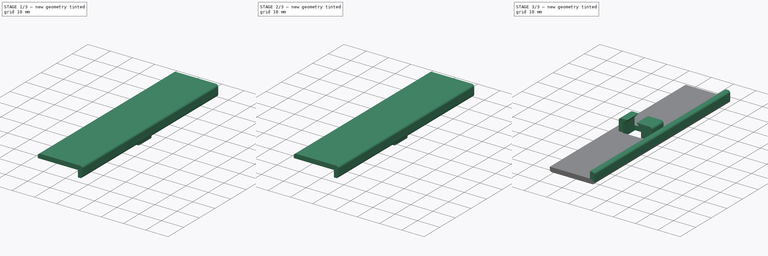
[diagram: build sequence overview — one tinted view per stage of 3, left to right]
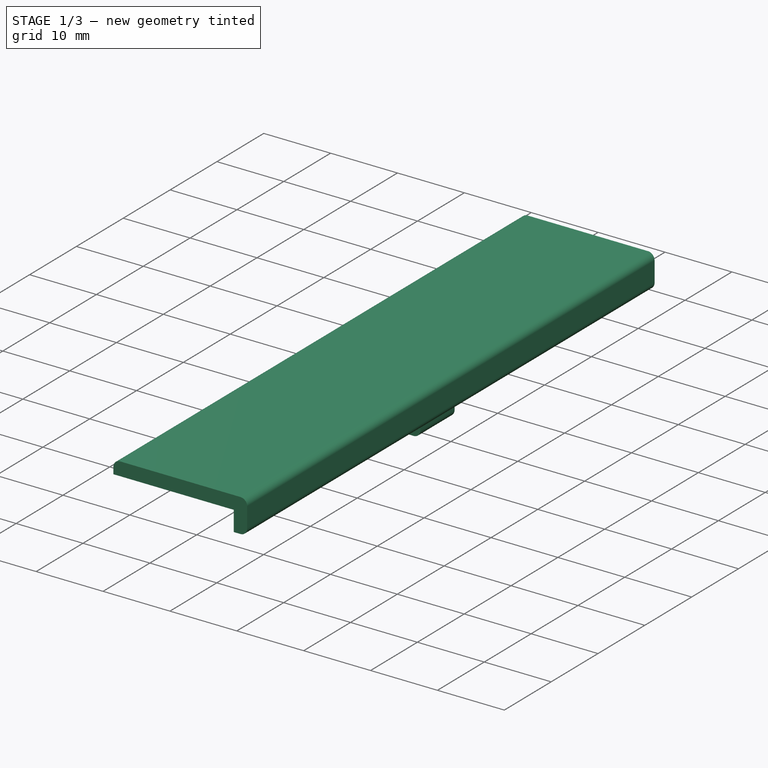
[diagram: stage 1 of 3 — iso view after this stage's code; geometry added in this stage tinted green]
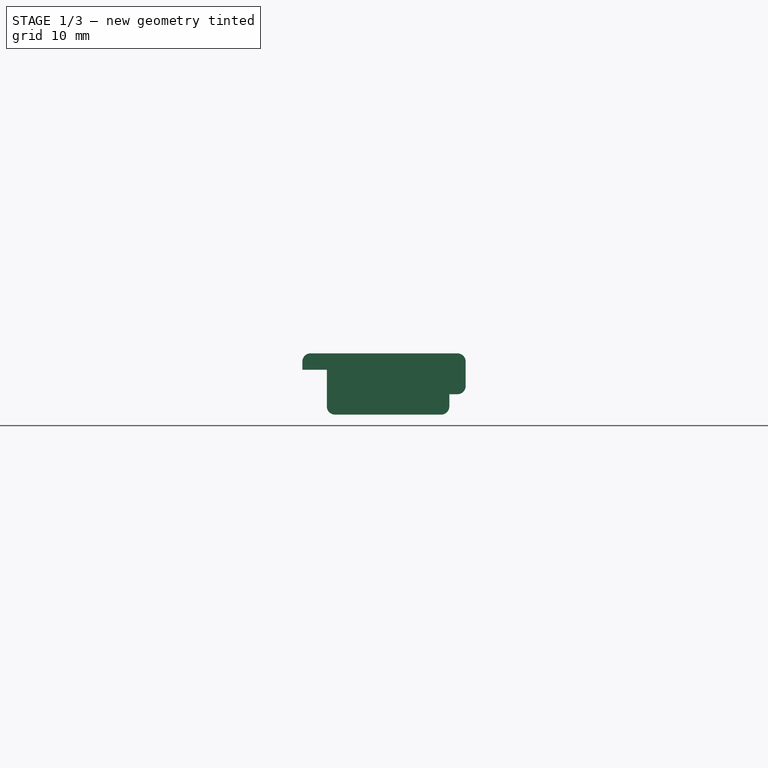
[diagram: stage 1 of 3 — front view after this stage's code; geometry added in this stage tinted green]
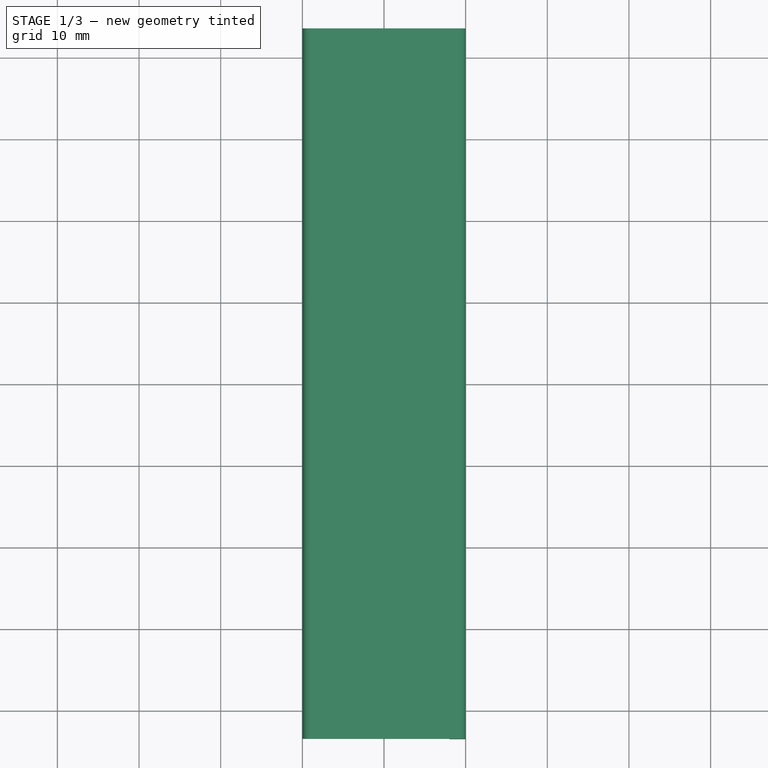
[diagram: stage 1 of 3 — top view after this stage's code; geometry added in this stage tinted green]
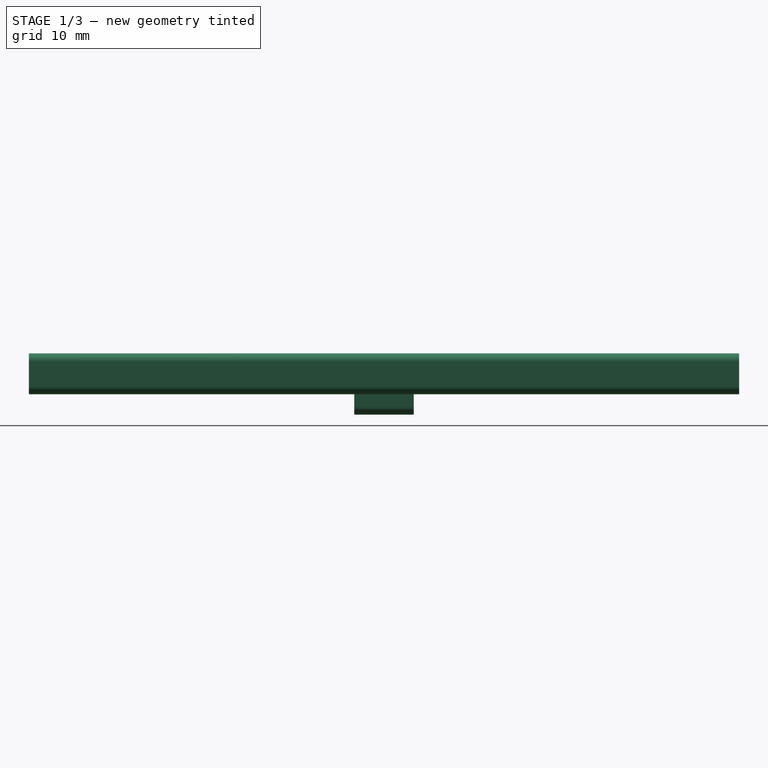
[diagram: stage 1 of 3 — right view after this stage's code; geometry added in this stage tinted green]
FCSTD DOCUMENT  (FreeCAD 0.14R3703 (Git))
Label: protection_alim
License: CC-BY 3.0
LicenseURL: http://creativecommons.org/licenses/by/3.0/
objects: Sketcher::SketchObject×3, PartDesign::Pad×3, Part::MultiFuse×1, Part::Cut×1
note: 11 computed .brp shape members not serialized (recipe doc carries the construction recipe); baked Part::Feature solids carry a one-line shape summary decoded from their .brp

FEATURE [Sketcher::SketchObject] Sketch  label="tole_plastique"
  Placement = pos=(0,0,0) rot=(1,0,0;1.5708rad)
  sketch-geometry (9):
    g0: LineSegment StartX=0 StartY=0 StartZ=0 EndX=18 EndY=0 EndZ=0
    g1: LineSegment StartX=18 StartY=0 StartZ=0 EndX=18 EndY=-3 EndZ=0
    g2: LineSegment StartX=18 StartY=-3 StartZ=0 EndX=19 EndY=-3 EndZ=0
    g3: LineSegment StartX=20 StartY=-2 StartZ=0 EndX=20 EndY=1 EndZ=0
    g4: LineSegment StartX=19 StartY=2 StartZ=0 EndX=1 EndY=2 EndZ=0
    g5: LineSegment StartX=0 StartY=1 StartZ=0 EndX=0 EndY=0 EndZ=0
    g6: ArcOfCircle CenterX=19 CenterY=1 CenterZ=0 NormalX=0 NormalY=0 NormalZ=1 Radius=1 StartAngle=0 EndAngle=1.5708
    g7: ArcOfCircle CenterX=19 CenterY=-2 CenterZ=0 NormalX=0 NormalY=0 NormalZ=1 Radius=1 StartAngle=4.71239 EndAngle=6.28319
    g8: ArcOfCircle CenterX=1 CenterY=1 CenterZ=0 NormalX=0 NormalY=0 NormalZ=1 Radius=1 StartAngle=1.5708 EndAngle=3.14159
  constraints (23):
    c: Coincident(g-1,g0)
    c: Horizontal(g0)
    c: Coincident(g0,g1)
    c: Coincident(g1,g2)
    c: Horizontal(g4)
    c: Coincident(g5,g0)
    c: Vertical(g5)
    c: DistanceX(g0) = 18
    c: Vertical(g1)
    c: Horizontal(g2)
    c: DistanceY(g1) = -3
    c: Vertical(g3)
    c: Tangent(g4,g6)
    c: Tangent(g3,g6)
    c: Tangent(g3,g7)
    c: Tangent(g2,g7)
    c: Radius(g6) = 1
    c: Radius(g7) = 1
    c: Tangent(g4,g8)
    c: Tangent(g5,g8)
    c: Radius(g8) = 1
    c: Distance(g0,g3) = 2
    c: Distance(g0,g4) = 2
FEATURE [PartDesign::Pad] Pad  label="tole_plastique001"
  Length = 87
  Length2 = 100
  Midplane = true
  Placement = pos=(0,0,0) rot=(1,0,0;1.5708rad)
  Sketch = -> Sketch
  Type = 0
FEATURE [Sketcher::SketchObject] Sketch001  label="insert"
  Placement = pos=(0,0,0) rot=(1,0,0;1.5708rad)
  sketch-geometry (6):
    g0: LineSegment StartX=4 StartY=-5.5 StartZ=0 EndX=17 EndY=-5.5 EndZ=0
    g1: LineSegment StartX=18 StartY=-4.5 StartZ=0 EndX=18 EndY=0 EndZ=0
    g2: ArcOfCircle CenterX=17 CenterY=-4.5 CenterZ=0 NormalX=0 NormalY=0 NormalZ=1 Radius=1 StartAngle=4.71239 EndAngle=6.28319
    g3: LineSegment StartX=3 StartY=-4.5 StartZ=0 EndX=3 EndY=0 EndZ=0
    g4: LineSegment StartX=3 StartY=0 StartZ=0 EndX=18 EndY=0 EndZ=0
    g5: ArcOfCircle CenterX=4 CenterY=-4.5 CenterZ=0 NormalX=0 NormalY=0 NormalZ=1 Radius=1 StartAngle=3.14159 EndAngle=4.71239
  constraints (16):
    c: Horizontal(g0)
    c: Vertical(g1)
    c: Tangent(g0,g2)
    c: Tangent(g1,g2)
    c: Radius(g2) = 1
    c: Vertical(g3)
    c: Coincident(g4,g3)
    c: Horizontal(g4)
    c: DistanceY(g-1,g3) = 0
    c: DistanceX(g-2,g1) = 18
    c: Coincident(g1,g4)
    c: DistanceX(g-1,g3) = 3
    c: Tangent(g3,g5)
    c: Tangent(g0,g5)
    c: Radius(g5) = 1
    c: DistanceY(g-1,g0) = -5.5
FEATURE [PartDesign::Pad] Pad001  label="insert001"
  Length = 7.3
  Length2 = 100
  Midplane = true
  Placement = pos=(0,0,0) rot=(1,0,0;1.5708rad)
  Sketch = -> Sketch001
  Type = 0
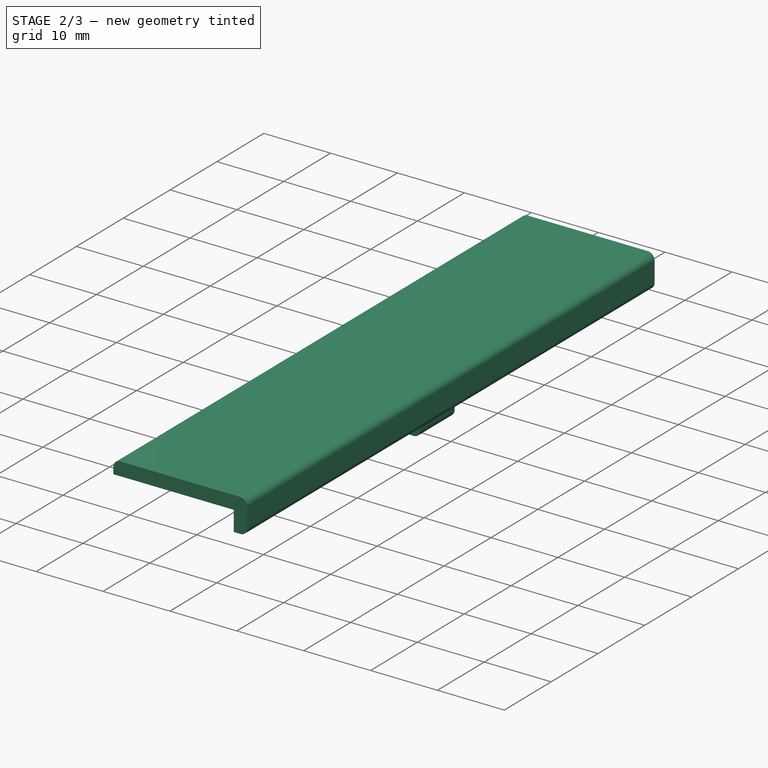
[diagram: stage 2 of 3 — iso view after this stage's code; geometry added in this stage tinted green]
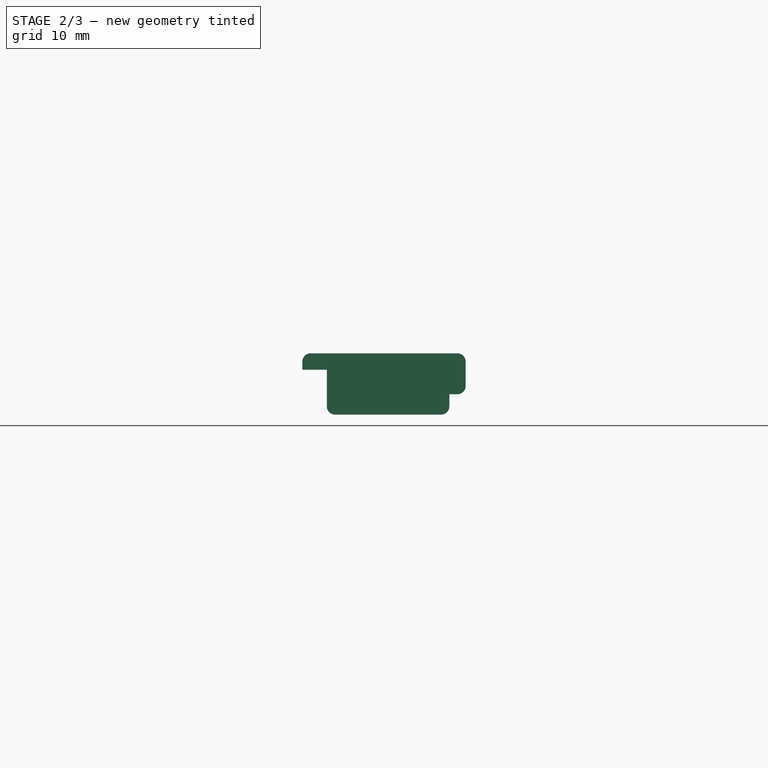
[diagram: stage 2 of 3 — front view after this stage's code; geometry added in this stage tinted green]
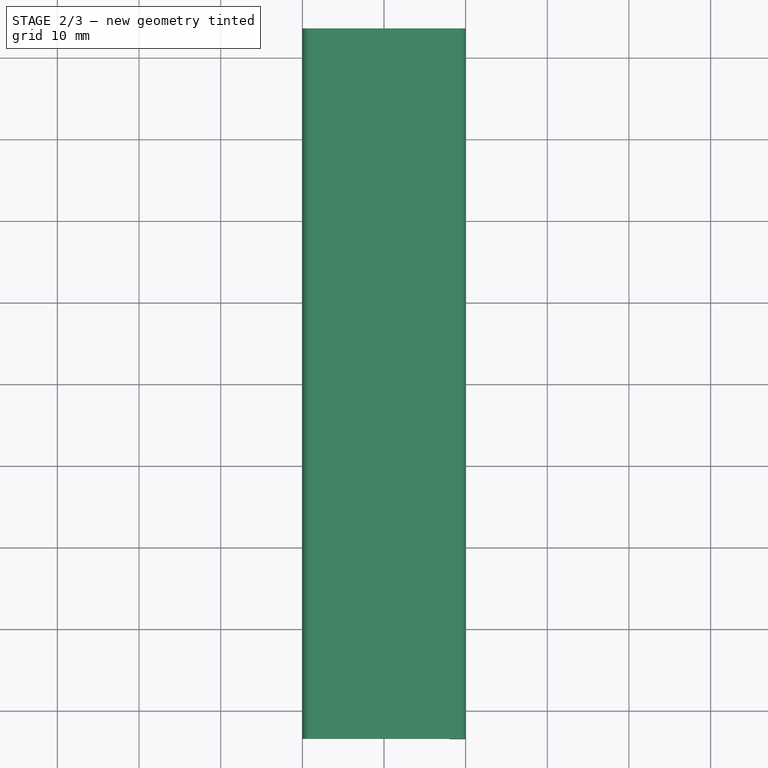
[diagram: stage 2 of 3 — top view after this stage's code; geometry added in this stage tinted green]
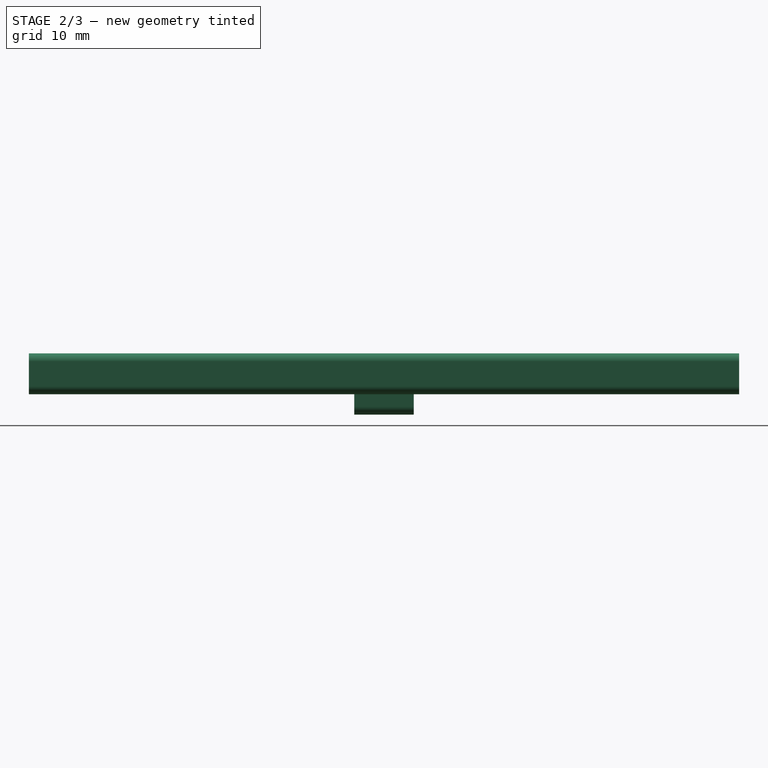
[diagram: stage 2 of 3 — right view after this stage's code; geometry added in this stage tinted green]
FEATURE [Part::MultiFuse] Fusion
  Shapes = -> [Pad,Pad001]
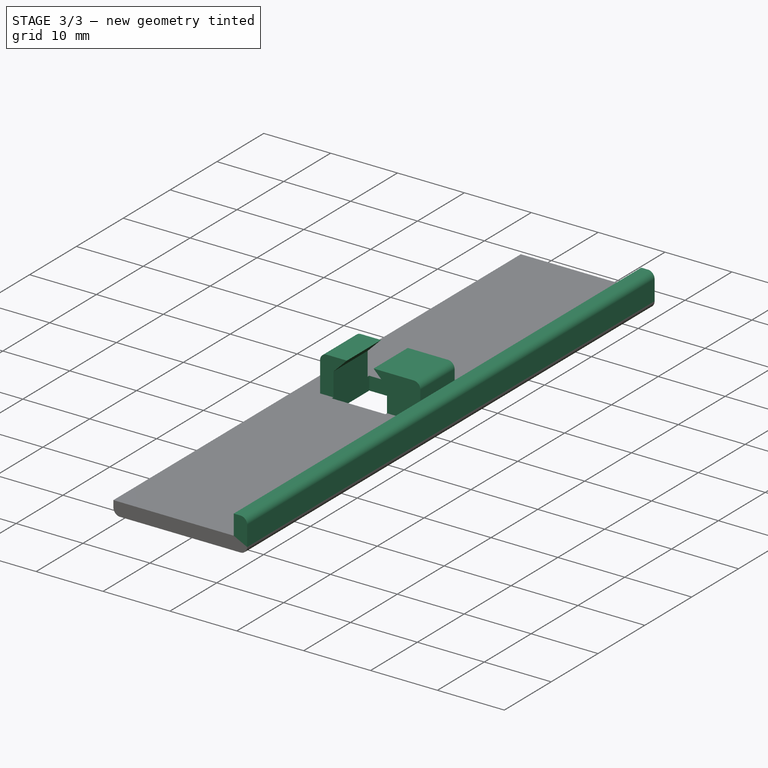
[diagram: stage 3 of 3 — iso view after this stage's code; geometry added in this stage tinted green]
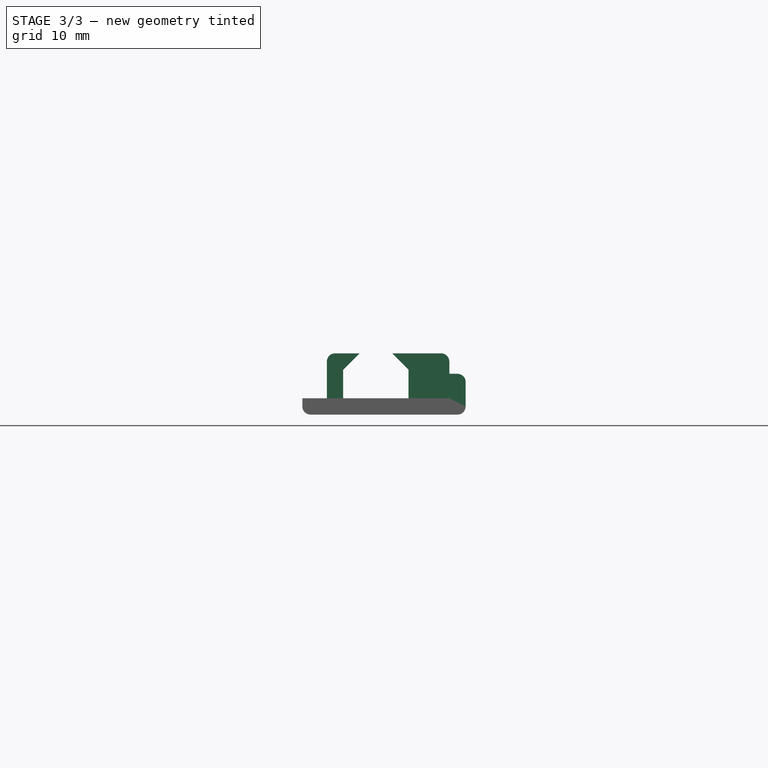
[diagram: stage 3 of 3 — front view after this stage's code; geometry added in this stage tinted green]
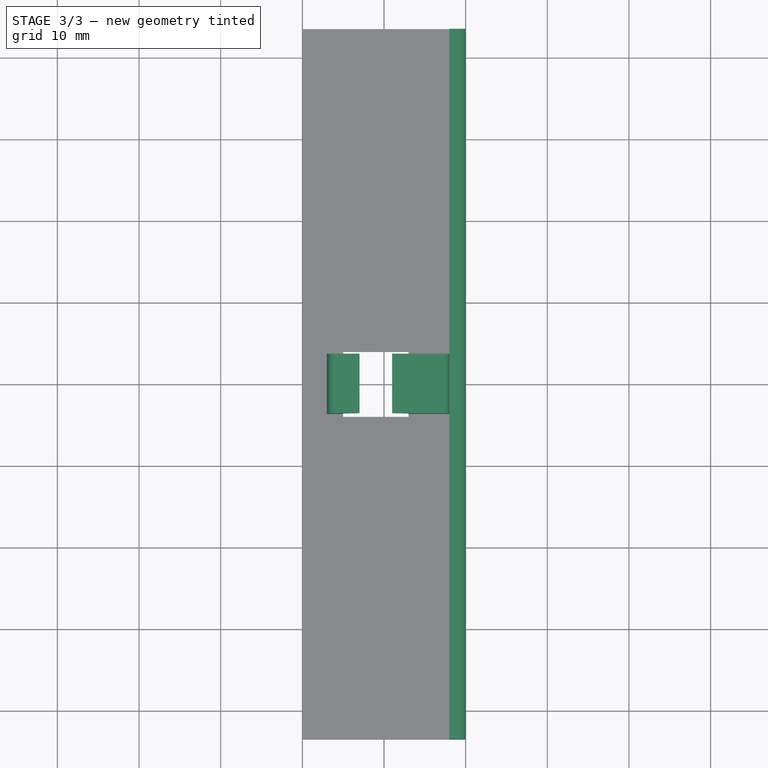
[diagram: stage 3 of 3 — top view after this stage's code; geometry added in this stage tinted green]
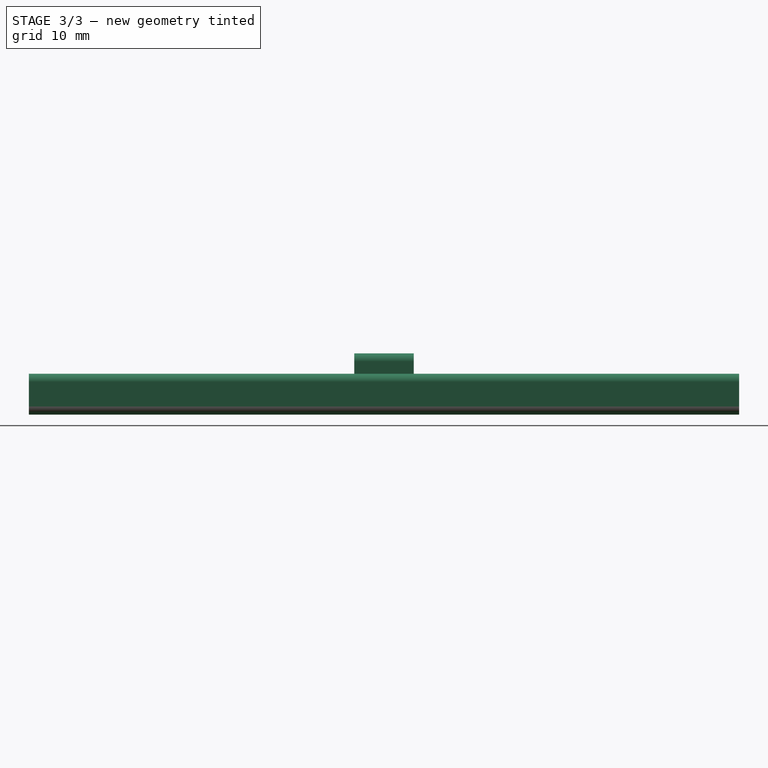
[diagram: stage 3 of 3 — right view after this stage's code; geometry added in this stage tinted green]
FEATURE [Sketcher::SketchObject] Sketch002  label="trou_carre"
  Placement = pos=(0,0,0) rot=(1,0,0;1.5708rad)
  sketch-geometry (6):
    g0: LineSegment StartX=5 StartY=3 StartZ=0 EndX=13 EndY=3 EndZ=0
    g1: LineSegment StartX=13 StartY=3 StartZ=0 EndX=13 EndY=-3.5 EndZ=0
    g2: LineSegment StartX=5 StartY=-3.5 StartZ=0 EndX=5 EndY=3 EndZ=0
    g3: LineSegment StartX=5 StartY=-3.5 StartZ=0 EndX=7.80234 EndY=-6.30234 EndZ=0
    g4: LineSegment StartX=7.80234 StartY=-6.30234 StartZ=0 EndX=10.1977 EndY=-6.30234 EndZ=0
    g5: LineSegment StartX=13 StartY=-3.5 StartZ=0 EndX=10.1977 EndY=-6.30234 EndZ=0
  constraints (17):
    c: Coincident(g0,g1)
    c: Coincident(g2,g0)
    c: Horizontal(g0)
    c: Vertical(g1)
    c: Vertical(g2)
    c: DistanceX(g-1,g0) = 5
    c: DistanceX(g0) = 8
    c: Coincident(g2,g3)
    c: Coincident(g3,g4)
    c: Horizontal(g4)
    c: Coincident(g5,g1)
    c: Coincident(g5,g4)
    c: Perpendicular(g5,g3)
    c: Angle(g3,g2) = 2.35619
    c: DistanceY(g2) = 6.5
    c: DistanceY(g-1,g0) = 3
    c: Equal(g5,g3)
FEATURE [PartDesign::Pad] Pad002  label="trou_carre001"
  Length = 8
  Length2 = 100
  Midplane = true
  Placement = pos=(0,0,0) rot=(1,0,0;1.5708rad)
  Sketch = -> Sketch002
  Type = 0
FEATURE [Part::Cut] Cut  label="protection_alim"
  Base = -> Fusion
  Placement = pos=(0,0,2) rot=(1,0,0;3.14159rad)
  Tool = -> Pad002
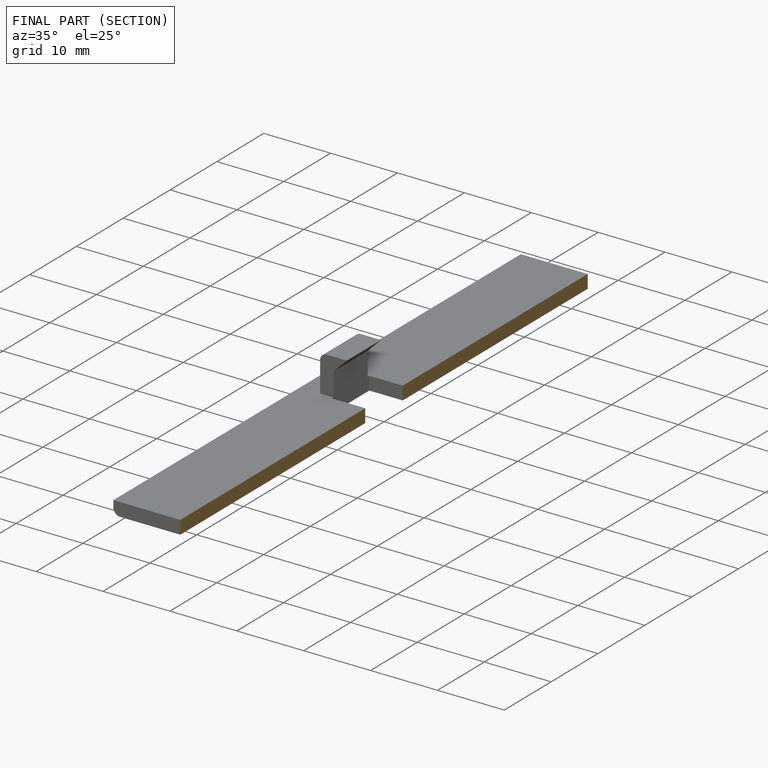
[diagram: finished part — half-section view (interior)]
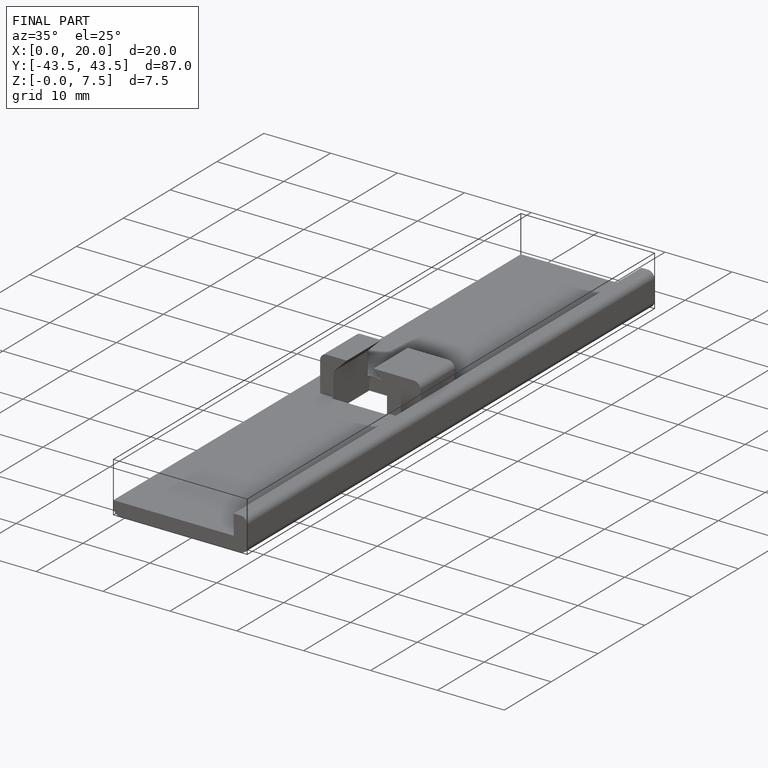
[diagram: finished part — iso view with bounding-box wireframe]
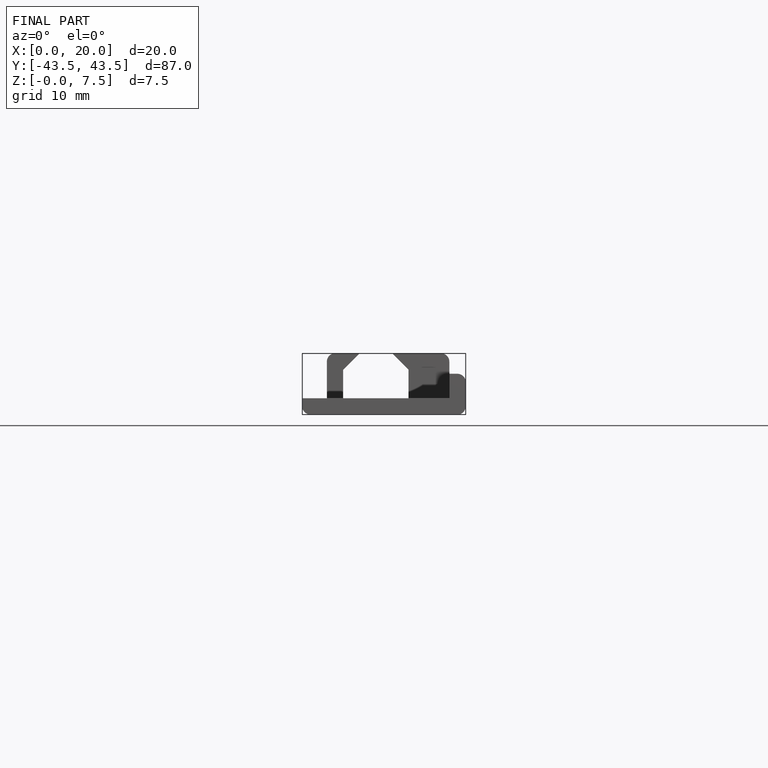
[diagram: finished part — front view with bounding-box wireframe]
